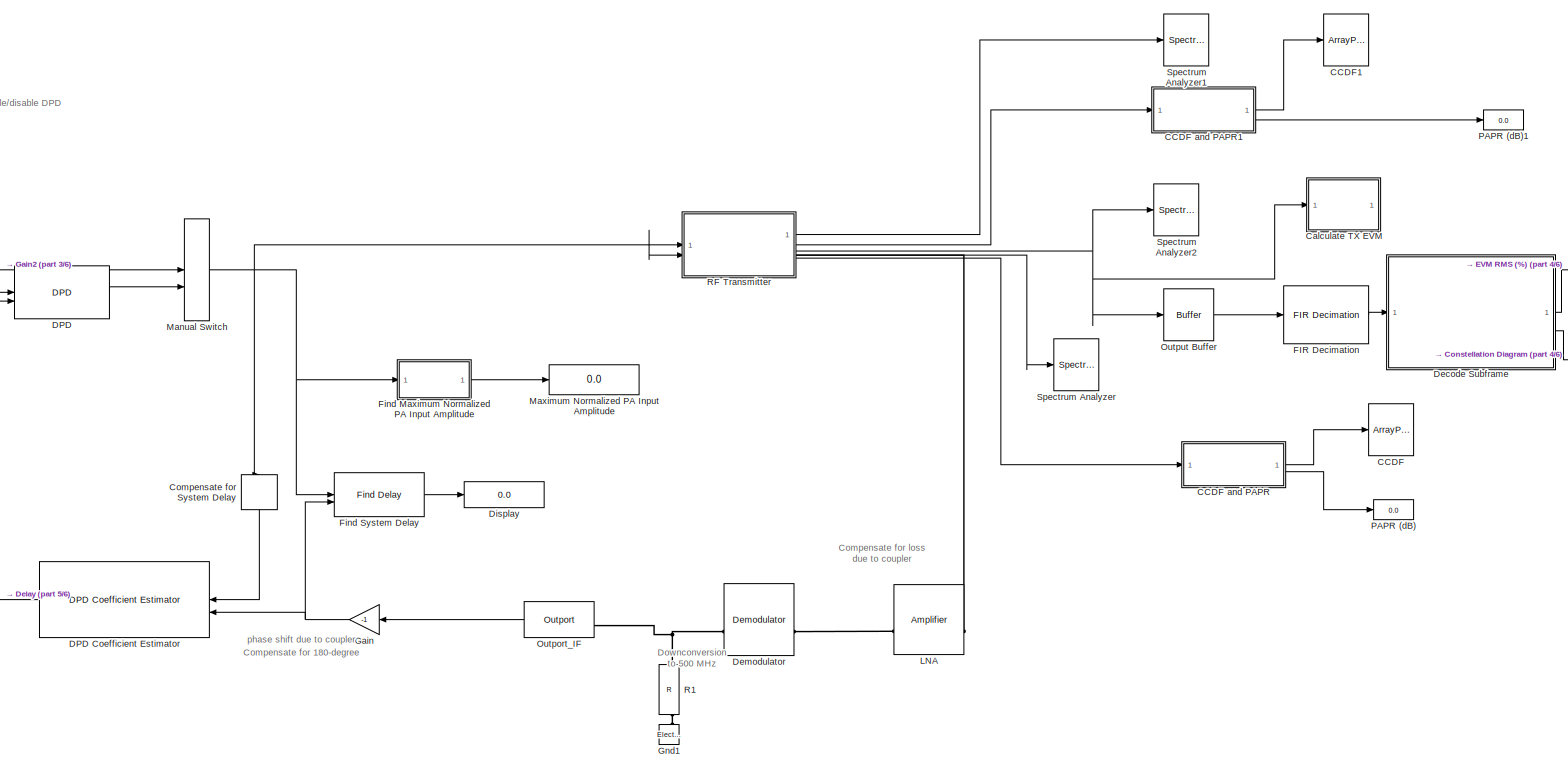
[diagram: root canvas - part 1/6, full width, middle band]
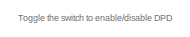
[diagram: root canvas - part 2/6, top left region]
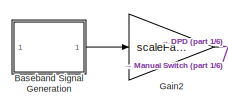
[diagram: root canvas - part 3/6, top left region]
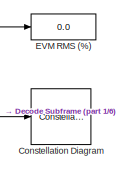
[diagram: root canvas - part 4/6, top right region]
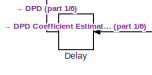
[diagram: root canvas - part 5/6, middle left region]
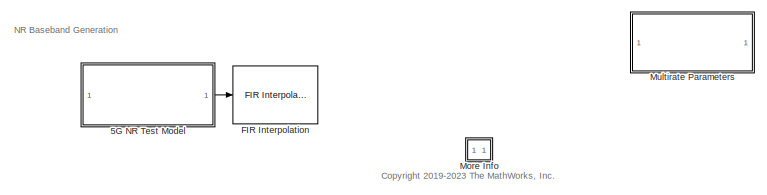
[diagram: root canvas - part 6/6, bottom center region]
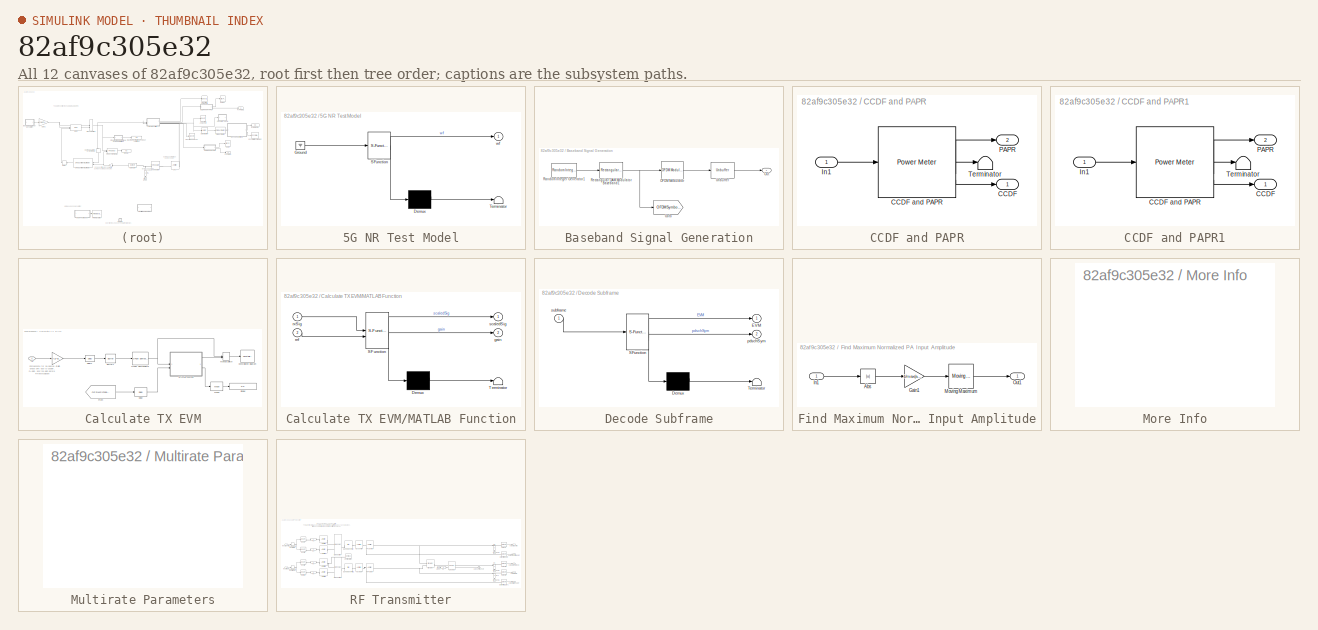
[diagram: thumbnail index - all 12 canvases of the model, root first then tree order]
MODEL slx_82af9c305e32
KIND model
CONFIG AbsTol = auto
CONFIG EnableMultiTasking = off
CONFIG FixedStep = auto
CONFIG InitFcn = % Initialize model parameters\nNRInfo = get_param([gcs '/5G NR Test Model'], 'UserData');\nMultirateBlock = [gcs '/Multirate Parameters'];\nhInitializeNRTMModel(MultirateBlock,NRInfo);
CONFIG MaxStep = auto
CONFIG MinStep = auto
CONFIG PreLoadFcn = % 100 MHz scenario\nscs = 30e3;\nfftLength = 4096;\nNSubcarriers = 3276;\ncpLength = 288; \nwindowLength = 20;\n\nnGuardBandCarrier = fftLength - NSubcarriers;\nofdmSymLen = fftLength+cpLength;\noverSamplingRate = 7;\nfilterLength = 6*70;\n\nBW = scs*fftLength;                       %  Signal BW\nTstep = 1/BW;                   %  Simulation BW BB\nRF = 3.7e9;                       %  RF center frequency\nIF = 5...<+793ch>
CONFIG RelTol = 1e-3
CONFIG SampleTimeConstraint = Unconstrained
CONFIG SolverName = VariableStepAuto
CONFIG StartTime = 0.0
CONFIG StopFcn = clear hDecodeSubframe;\n\n
CONFIG StopTime = Tstep*ofdmSymLen*6
BLOCK [SubSystem] 5G NR Test Model
  Commented = on
  ErrorFcn = Stateflow.Translate.translate
  LibrarySourceBlock = simulink/User-Defined\nFunctions/MATLAB Function
  PermitHierarchicalResolution = ExplicitOnly
  SFBlockType = MATLAB Function
  SystemSampleTime = 1.3020833333333333957e-07
  Tag = BlockGeneratedWWGApp
  TreatAsAtomicUnit = on
  UserDataPersistent = on
BLOCK [Demux] 5G NR Test Model/ Demux 
  Outputs = 1
BLOCK [Ground] 5G NR Test Model/ Ground 
BLOCK [S-Function] 5G NR Test Model/ SFunction 
  EnableBusSupport = on
  FunctionName = sf_sfun
  Parameters = OutputAfterFinalValue,nsamps,waveform
  PortCounts = [1 2]
  SFcnIsStateOwnerBlock = off
  SFunctionDeploymentMode = off
  Tag = Stateflow S-Function 1
BLOCK [Terminator] 5G NR Test Model/ Terminator 
BLOCK [Outport] 5G NR Test Model/wf
BLOCK [SubSystem] Baseband Signal Generation
  NameLocation = top
BLOCK [Goto] Baseband Signal Generation/Goto
  GotoTag = OFDMSymbols
  TagVisibility = global
BLOCK [Reference] Baseband Signal Generation/OFDM Modulator  REF=commofdm/OFDM Modulator
  SourceBlock = commofdm/OFDM Modulator
  SourceType = OFDM Modulator
BLOCK [Outport] Baseband Signal Generation/Out
  VectorParamsAs1DForOutWhenUnconnected = off
BLOCK [Reference] Baseband Signal Generation/Random Integer Generator1  REF=commrandsrc3/Random Integer
Generator
  SourceBlock = commrandsrc3/Random Integer\nGenerator
  SourceType = Random Integer Generator
BLOCK [Reference] Baseband Signal Generation/Rectangular QAM Modulator Baseband1  REF=commdigbbndam3/Rectangular QAM
Modulator
Baseband
  SourceBlock = commdigbbndam3/Rectangular QAM\nModulator\nBaseband
  SourceType = Rectangular QAM Modulator Baseband
BLOCK [Unbuffer] Baseband Signal Generation/Unbuffer
  NameLocation = top
BLOCK [ArrayPlot] CCDF
  Commented = on
  GraphicalSettings = {"Style":{"BackgroundColor":[0.1568627450980392,0.1568627450980392,0.1568627450980392],"AxesColor":[0,0,0],"LabelsColor":[0.6862745098039216,0.6862745098039216,0.6862745098039216],"PreserveColors":false,"Visible":[true],"LineStyle":["-"],"LineColor":[[1,1,0.06666666666666667]],"LineWidth":[1.5],"Marker":["none"],"FontSize":"small"},"Cursors":{"Enabled":false,"XLocation":[2,8],"YLocation":[2,8],"Sn...<+439ch>
  PlotType = Line
  SampleIncrement = 0.1
  ScopeFrameLocation = window
  ShowLegend = on
  Title = CCDF Curve
  WasSavedAsWebScope = on
  WindowPosition = [823.000000,372.000000,866.000000,486.000000,]
  XLabel = Rel Power (dB)
  XOffset = -40.7414
  YLabel = Probability (%)
  YLimits = [-12.4981,112.4829]
  YScale = Log
BLOCK [SubSystem] CCDF and PAPR
  Commented = on
BLOCK [Outport] CCDF and PAPR/CCDF
BLOCK [Reference] CCDF and PAPR/CCDF and PAPR  REF=dspstat3/Power Meter
  SourceBlock = dspstat3/Power Meter
  SourceType = dsp.simulink.PowerMeter
BLOCK [Inport] CCDF and PAPR/In1
BLOCK [Outport] CCDF and PAPR/PAPR
  Port = 2
BLOCK [Terminator] CCDF and PAPR/Terminator
BLOCK [SubSystem] CCDF and PAPR1
  Commented = on
BLOCK [Outport] CCDF and PAPR1/CCDF
BLOCK [Reference] CCDF and PAPR1/CCDF and PAPR  REF=dspstat3/Power Meter
  SourceBlock = dspstat3/Power Meter
  SourceType = dsp.simulink.PowerMeter
BLOCK [Inport] CCDF and PAPR1/In1
BLOCK [Outport] CCDF and PAPR1/PAPR
  Port = 2
BLOCK [Terminator] CCDF and PAPR1/Terminator
BLOCK [ArrayPlot] CCDF1
  Commented = on
  GraphicalSettings = {"Style":{"BackgroundColor":[0.1568627450980392,0.1568627450980392,0.1568627450980392],"AxesColor":[0,0,0],"LabelsColor":[0.6862745098039216,0.6862745098039216,0.6862745098039216],"PreserveColors":false,"Visible":[true],"LineStyle":["-"],"LineColor":[[1,1,0.06666666666666667]],"LineWidth":[1.5],"Marker":["none"],"FontSize":"small"},"Cursors":{"Enabled":false,"XLocation":[2,8],"YLocation":[2,8],"Sn...<+439ch>
  PlotType = Line
  SampleIncrement = 0.1
  ScopeFrameLocation = window
  ShowLegend = on
  Title = CCDF Curve
  WasSavedAsWebScope = on
  WindowPosition = [823.000000,372.000000,866.000000,486.000000,]
  XLabel = Rel Power (dB)
  XOffset = -40.7414
  YLabel = Probability (%)
  YLimits = [-12.498,112.4823]
  YScale = Log
BLOCK [SubSystem] Calculate TX EVM
BLOCK [Buffer] Calculate TX EVM/Buffer1
  N = ofdmSymLen*overSamplingRate
  OutputFrames = off
BLOCK [ConstellationDiagram] Calculate TX EVM/Constellation Diagram
  DefaultConfigurationName = comm.scopes.ConstellationDiagramBlockCfg
  EnableMeasurements = on
  GraphicalSettings = {"GraphicalSettings":{"Style":{}}}
  ReferenceConstellation = {[-7+7i  -7+5i  -7+3i  -7+1i  -7-1i  -7-3i  -7-5i  -7-7i  -5+7i  -5+5i  -5+3i  -5+1i  -5-1i  -5-3i  -5-5i  -5-7i  -3+7i  -3+5i  -3+3i  -3+1i  -3-1i  -3-3i  -3-5i  -3-7i  -1+7i  -1+5i  -1+3i  -1+1i  -1-1i  -1-3i  -1-5i  -1-7i   1+7i   1+5i   1+3i   1+1i   1-1i   1-3i   1-5i   1-7i   3+7i   3+5i   3+3i   3+1i   3-1i   3-3i   3-5i   3-7i   5+7i   5+5i   5+3i   5+1i   5-1i   5-3i   5-5i   5-7i   7+7i ...<+50ch>
  ScopeFrameLocation = window
  Visible = on
  WasSavedAsWebScope = on
  WindowPosition = [501.000000,93.000000,973.000000,546.000000,]
  XLimits = [-9.7559 9.963]
  YLimits = [-9.7559 9.963]
BLOCK [Delay] Calculate TX EVM/Delay
  DelayLength = 2*(fftLength-2*N-1)
  InputPortMap = u0
  InputProcessing = Columns as channels (frame based)
BLOCK [Delay] Calculate TX EVM/Delay1
  DelayLength = ofdmSymLen*overSamplingRate
  InputPortMap = u0
  InputProcessing = Columns as channels (frame based)
BLOCK [Display] Calculate TX EVM/Display
  Decimation = 1
BLOCK [From] Calculate TX EVM/From
  GotoTag = OFDMSymbols
  TagVisibility = global
BLOCK [Gain] Calculate TX EVM/Gain
  Gain = 1/(1j*gain*scaleFactor)
BLOCK [Inport] Calculate TX EVM/In
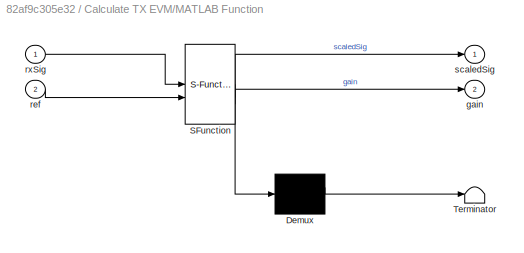
BLOCK [SubSystem] Calculate TX EVM/MATLAB Function
  ErrorFcn = Stateflow.Translate.translate
  PermitHierarchicalResolution = ExplicitOnly
  SFBlockType = MATLAB Function
  TreatAsAtomicUnit = on
BLOCK [Demux] Calculate TX EVM/MATLAB Function/ Demux 
  Outputs = 1
BLOCK [S-Function] Calculate TX EVM/MATLAB Function/ SFunction 
  EnableBusSupport = on
  FunctionName = sf_sfun
  PortCounts = [2 3]
  SFcnIsStateOwnerBlock = off
  SFunctionDeploymentMode = off
  Tag = Stateflow S-Function 2
BLOCK [Terminator] Calculate TX EVM/MATLAB Function/ Terminator 
BLOCK [Outport] Calculate TX EVM/MATLAB Function/gain
  Port = 2
BLOCK [Inport] Calculate TX EVM/MATLAB Function/ref
  Port = 2
BLOCK [Inport] Calculate TX EVM/MATLAB Function/rxSig
BLOCK [Outport] Calculate TX EVM/MATLAB Function/scaledSig
BLOCK [ManualSwitch] Calculate TX EVM/Manual Switch
  CurrentSetting = 0
BLOCK [Reference] Calculate TX EVM/Mean  REF=dspstat3/Mean
  SourceBlock = dspstat3/Mean
  SourceType = Mean
  UserDataPersistent = on
BLOCK [Reference] Calculate TX EVM/OFDM Demodulator  REF=commofdm/OFDM Demodulator
  SourceBlock = commofdm/OFDM Demodulator
  SourceType = OFDM Demodulator
BLOCK [Delay] Compensate for System Delay
  DelayLength = 0
  InputPortMap = u0
  NameLocation = left
BLOCK [ConstellationDiagram] Constellation Diagram
  Commented = on
  DefaultConfigurationName = comm.scopes.ConstellationDiagramBlockCfg
  GraphicalSettings = {"Style":{"BackgroundColor":[0.1568627450980392,0.1568627450980392,0.1568627450980392],"AxesColor":[0,0,0],"LabelsColor":[0.6862745098039216,0.6862745098039216,0.6862745098039216],"LineStyle":["NONE","NONE"],"LineColor":[[1,1,0.06666666666666667],[1,0,0]],"LineWidth":[1,1],"Marker":[".","none"],"IsRefLine":[false,true],"FontSize":"small"},"ReferenceConstellation":[{"ReferenceConstellation":"Custom...<+96ch>
  ScopeFrameLocation = window
  ShowReferenceConstellation = off
  WasSavedAsWebScope = on
  WindowPosition = [576.000000,404.000000,590.000000,412.000000,]
BLOCK [Reference] DPD  REF=commrfcorlib/DPD
  SourceBlock = commrfcorlib/DPD
  SourceType = DPD
BLOCK [Reference] DPD Coefficient Estimator  REF=commrfcorlib/DPD
Coefficient Estimator
  SourceBlock = commrfcorlib/DPD\nCoefficient Estimator
  SourceType = DPD Coefficient Estimator
BLOCK [SubSystem] Decode Subframe
  Commented = on
  ErrorFcn = Stateflow.Translate.translate
  PermitHierarchicalResolution = ExplicitOnly
  SFBlockType = MATLAB Function
  TreatAsAtomicUnit = on
BLOCK [Demux] Decode Subframe/ Demux 
  Outputs = 1
BLOCK [S-Function] Decode Subframe/ SFunction 
  EnableBusSupport = on
  FunctionName = sf_sfun
  Parameters = EVM3GPP
  PortCounts = [1 3]
  SFcnIsStateOwnerBlock = off
  SFunctionDeploymentMode = off
  Tag = Stateflow S-Function 3
BLOCK [Terminator] Decode Subframe/ Terminator 
BLOCK [Outport] Decode Subframe/EVM
BLOCK [Outport] Decode Subframe/pdschSym
  Port = 2
BLOCK [Inport] Decode Subframe/subframe
BLOCK [Delay] Delay
  DelayLength = 1
  InputPortMap = u0
BLOCK [Reference] Demodulator  REF=simrfV2systems/Demodulator
  NameLocation = top
  SourceBlock = simrfV2systems/Demodulator
  SourceType = Demodulator
BLOCK [Display] Display
  Decimation = 1
BLOCK [Display] EVM RMS (%)
  Commented = on
  Decimation = 1
BLOCK [Reference] FIR Decimation  REF=dspmlti4/FIR
Decimation
  SourceBlock = dspmlti4/FIR\nDecimation
  SourceType = FIR Decimation
  UserDataPersistent = on
BLOCK [Reference] FIR Interpolation  REF=dspmlti4/FIR
Interpolation
  SourceBlock = dspmlti4/FIR\nInterpolation
  SourceType = FIR Interpolation
  UserDataPersistent = on
BLOCK [SubSystem] Find Maximum Normalized PA Input Amplitude
  ShowPortLabels = none
BLOCK [Abs] Find Maximum Normalized PA Input Amplitude/Abs
  SaturateOnIntegerOverflow = off
BLOCK [Gain] Find Maximum Normalized PA Input Amplitude/Gain1
  Gain = 1/max(abs(paInput))
BLOCK [Inport] Find Maximum Normalized PA Input Amplitude/In1
BLOCK [Reference] Find Maximum Normalized PA Input Amplitude/Moving Maximum  REF=dspstat3/Moving
Maximum
  SourceBlock = dspstat3/Moving\nMaximum
  SourceType = dsp.simulink.MovingMaximum
BLOCK [Outport] Find Maximum Normalized PA Input Amplitude/Out1
BLOCK [Reference] Find System Delay  REF=commutil2/Find Delay
  SourceBlock = commutil2/Find Delay
  SourceType = Find Delay
BLOCK [Gain] Gain
  Gain = -1
BLOCK [Gain] Gain2
  Gain = scaleFactor
BLOCK [Reference] Gnd1  REF=simrfV2_lib/Elements/Electrical Reference
  NameLocation = right
  SourceBlock = simrfV2_lib/Elements/Electrical Reference
  SourceType = Electrical Reference
BLOCK [Reference] LNA  REF=simrfV2elements/Amplifier
  SourceBlock = simrfV2elements/Amplifier
  SourceType = Amplifier
BLOCK [ManualSwitch] Manual Switch
BLOCK [Display] Maximum Normalized PA Input Amplitude
  Decimation = 1
BLOCK [SubSystem] More Info
  Commented = on
  OpenFcn = showExample('5g/NRModelingAndTestingRFTransmitterExample');
BLOCK [SubSystem] Multirate Parameters
  Commented = on
BLOCK [Reference] Outport_IF  REF=simrfV2util1/Outport
  NameLocation = top
  SourceBlock = simrfV2util1/Outport
  SourceType = Outport
BLOCK [Buffer] Output Buffer
  Commented = on
  N = NRInfo.WaveformLength/NRInfo.WaveformConfig.NumSubframes*OSR
  OutputFrames = off
BLOCK [Display] PAPR (dB)
  Commented = on
BLOCK [Display] PAPR (dB)1
  Commented = on
BLOCK [Reference] R1  REF=simrfV2elements/R
  NameLocation = left
  SourceBlock = simrfV2elements/R
  SourceType = Resistor
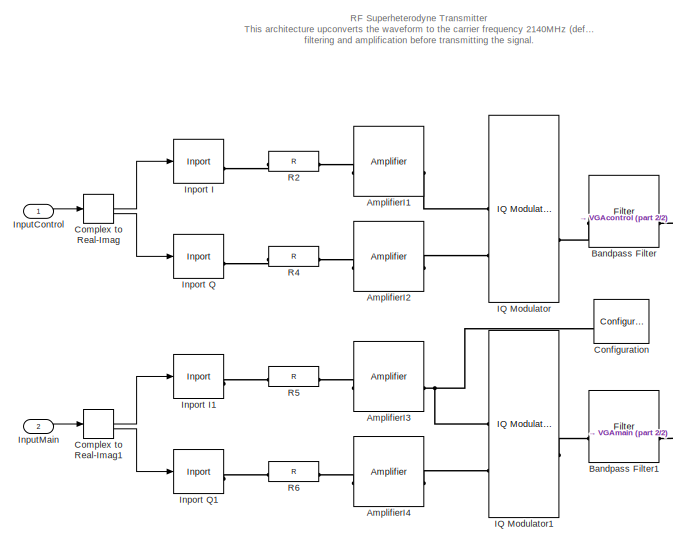
[diagram: RF Transmitter - part 1/2, left side, full height]
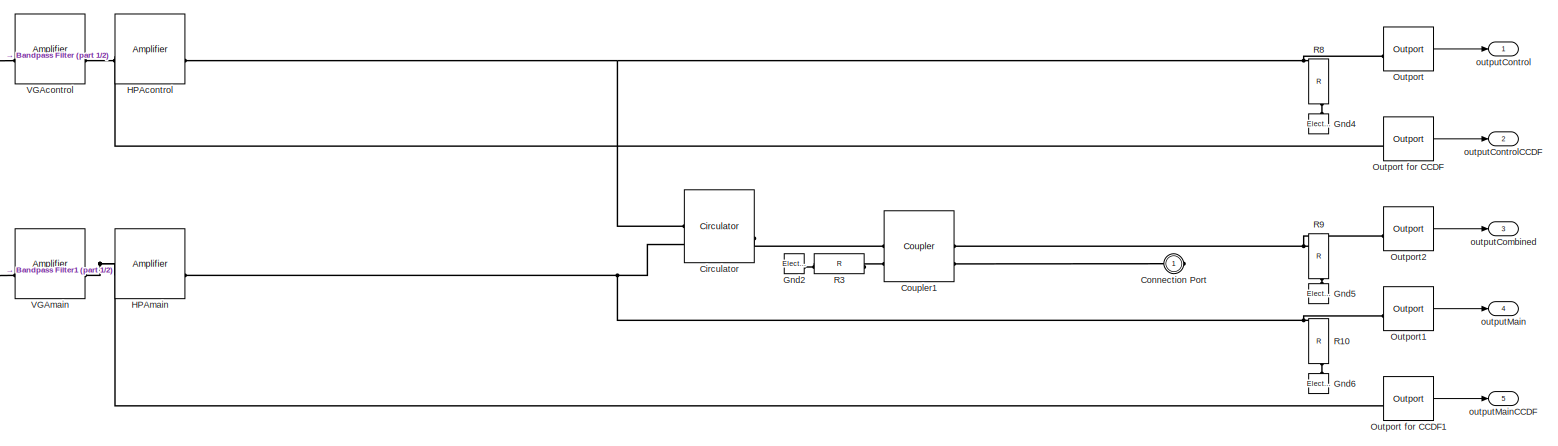
[diagram: RF Transmitter - part 2/2, central region]
BLOCK [SubSystem] RF Transmitter
BLOCK [Reference] RF Transmitter/AmplifierI1  REF=simrfV2elements/Amplifier
  Commented = on
  NameLocation = top
  SourceBlock = simrfV2elements/Amplifier
  SourceType = Amplifier
BLOCK [Reference] RF Transmitter/AmplifierI2  REF=simrfV2elements/Amplifier
  Commented = on
  NameLocation = top
  SourceBlock = simrfV2elements/Amplifier
  SourceType = Amplifier
BLOCK [Reference] RF Transmitter/AmplifierI3  REF=simrfV2elements/Amplifier
  NameLocation = top
  SourceBlock = simrfV2elements/Amplifier
  SourceType = Amplifier
BLOCK [Reference] RF Transmitter/AmplifierI4  REF=simrfV2elements/Amplifier
  NameLocation = top
  SourceBlock = simrfV2elements/Amplifier
  SourceType = Amplifier
BLOCK [Reference] RF Transmitter/Bandpass Filter  REF=simrfV2elements/Filter
  Commented = on
  SourceBlock = simrfV2elements/Filter
  SourceType = Filter
  UserDataPersistent = on
BLOCK [Reference] RF Transmitter/Bandpass Filter1  REF=simrfV2elements/Filter
  SourceBlock = simrfV2elements/Filter
  SourceType = Filter
  UserDataPersistent = on
BLOCK [Reference] RF Transmitter/Circulator  REF=simrfV2junction1/Circulator
  SourceBlock = simrfV2junction1/Circulator
  SourceType = Ideal Circulators
  UserDataPersistent = on
BLOCK [ComplexToRealImag] RF Transmitter/Complex to Real-Imag
  Commented = on
BLOCK [ComplexToRealImag] RF Transmitter/Complex to Real-Imag1
BLOCK [Reference] RF Transmitter/Configuration  REF=simrfV2util1/Configuration
  SourceBlock = simrfV2util1/Configuration
  SourceType = Configuration
BLOCK [PMIOPort] RF Transmitter/Connection Port
  Side = Right
  Tag = simrfV2util1/Connection Port
BLOCK [Reference] RF Transmitter/Coupler1  REF=simrfV2junction1/Coupler
  SourceBlock = simrfV2junction1/Coupler
  SourceType = Ideal Couplers
  UserDataPersistent = on
BLOCK [Reference] RF Transmitter/Gnd2  REF=simrfV2_lib/Elements/Electrical Reference
  SourceBlock = simrfV2_lib/Elements/Electrical Reference
  SourceType = Electrical Reference
BLOCK [Reference] RF Transmitter/Gnd4  REF=simrfV2_lib/Elements/Electrical Reference
  Commented = on
  NameLocation = right
  SourceBlock = simrfV2_lib/Elements/Electrical Reference
  SourceType = Electrical Reference
BLOCK [Reference] RF Transmitter/Gnd5  REF=simrfV2_lib/Elements/Electrical Reference
  NameLocation = right
  SourceBlock = simrfV2_lib/Elements/Electrical Reference
  SourceType = Electrical Reference
BLOCK [Reference] RF Transmitter/Gnd6  REF=simrfV2_lib/Elements/Electrical Reference
  NameLocation = right
  SourceBlock = simrfV2_lib/Elements/Electrical Reference
  SourceType = Electrical Reference
BLOCK [Reference] RF Transmitter/HPAcontrol  REF=simrfV2elements/Amplifier
  Commented = on
  SourceBlock = simrfV2elements/Amplifier
  SourceType = Amplifier
  UserDataPersistent = on
BLOCK [Reference] RF Transmitter/HPAmain  REF=simrfV2elements/Amplifier
  SourceBlock = simrfV2elements/Amplifier
  SourceType = Amplifier
  UserDataPersistent = on
BLOCK [Reference] RF Transmitter/IQ Modulator  REF=simrfV2systems/IQ Modulator
  Commented = on
  SourceBlock = simrfV2systems/IQ Modulator
  SourceType = IQ Modulator
BLOCK [Reference] RF Transmitter/IQ Modulator1  REF=simrfV2systems/IQ Modulator
  SourceBlock = simrfV2systems/IQ Modulator
  SourceType = IQ Modulator
BLOCK [Reference] RF Transmitter/Inport I  REF=simrfV2util1/Inport
  Commented = on
  SourceBlock = simrfV2util1/Inport
  SourceType = Inport
BLOCK [Reference] RF Transmitter/Inport I1  REF=simrfV2util1/Inport
  SourceBlock = simrfV2util1/Inport
  SourceType = Inport
BLOCK [Reference] RF Transmitter/Inport Q  REF=simrfV2util1/Inport
  Commented = on
  SourceBlock = simrfV2util1/Inport
  SourceType = Inport
BLOCK [Reference] RF Transmitter/Inport Q1  REF=simrfV2util1/Inport
  SourceBlock = simrfV2util1/Inport
  SourceType = Inport
BLOCK [Inport] RF Transmitter/InputControl
BLOCK [Inport] RF Transmitter/InputMain
  Port = 2
BLOCK [Reference] RF Transmitter/Outport  REF=simrfV2util1/Outport
  Commented = on
  SourceBlock = simrfV2util1/Outport
  SourceType = Outport
BLOCK [Reference] RF Transmitter/Outport for CCDF  REF=simrfV2util1/Outport
  Commented = on
  SourceBlock = simrfV2util1/Outport
  SourceType = Outport
BLOCK [Reference] RF Transmitter/Outport for CCDF1  REF=simrfV2util1/Outport
  SourceBlock = simrfV2util1/Outport
  SourceType = Outport
BLOCK [Reference] RF Transmitter/Outport1  REF=simrfV2util1/Outport
  SourceBlock = simrfV2util1/Outport
  SourceType = Outport
BLOCK [Reference] RF Transmitter/Outport2  REF=simrfV2util1/Outport
  SourceBlock = simrfV2util1/Outport
  SourceType = Outport
BLOCK [Reference] RF Transmitter/R10  REF=simrfV2elements/R
  NameLocation = left
  SourceBlock = simrfV2elements/R
  SourceType = Resistor
BLOCK [Reference] RF Transmitter/R2  REF=simrfV2elements/R
  Commented = on
  SourceBlock = simrfV2elements/R
  SourceType = Resistor
BLOCK [Reference] RF Transmitter/R3  REF=simrfV2elements/R
  NameLocation = top
  SourceBlock = simrfV2elements/R
  SourceType = Resistor
BLOCK [Reference] RF Transmitter/R4  REF=simrfV2elements/R
  Commented = on
  SourceBlock = simrfV2elements/R
  SourceType = Resistor
BLOCK [Reference] RF Transmitter/R5  REF=simrfV2elements/R
  SourceBlock = simrfV2elements/R
  SourceType = Resistor
BLOCK [Reference] RF Transmitter/R6  REF=simrfV2elements/R
  SourceBlock = simrfV2elements/R
  SourceType = Resistor
BLOCK [Reference] RF Transmitter/R8  REF=simrfV2elements/R
  Commented = on
  NameLocation = left
  SourceBlock = simrfV2elements/R
  SourceType = Resistor
BLOCK [Reference] RF Transmitter/R9  REF=simrfV2elements/R
  NameLocation = left
  SourceBlock = simrfV2elements/R
  SourceType = Resistor
BLOCK [Reference] RF Transmitter/VGAcontrol  REF=simrfV2elements/Amplifier
  Commented = on
  SourceBlock = simrfV2elements/Amplifier
  SourceType = Amplifier
  UserDataPersistent = on
BLOCK [Reference] RF Transmitter/VGAmain  REF=simrfV2elements/Amplifier
  SourceBlock = simrfV2elements/Amplifier
  SourceType = Amplifier
  UserDataPersistent = on
BLOCK [Outport] RF Transmitter/outputCombined
  Port = 3
BLOCK [Outport] RF Transmitter/outputControl
BLOCK [Outport] RF Transmitter/outputControlCCDF
  Port = 2
BLOCK [Outport] RF Transmitter/outputMain
  Port = 4
BLOCK [Outport] RF Transmitter/outputMainCCDF
  Port = 5
BLOCK [SpectrumAnalyzer] Spectrum Analyzer
  Commented = on
  ForgettingFactor = 0.99388
  GraphicalSettings = {"GraphicalSettings":{"Style":{"BackgroundColor":[0.15686274509803921,0.15686274509803921,0.15686274509803921],"AxesColor":[0,0,0],"LabelsColor":[0.68627450980392157,0.68627450980392157,0.68627450980392157],"PreserveColors":false,"Visible":true,"LineStyle":["-"],"LineColor":[1,1,0.066666666666666666],"LineWidth":0.5,"Marker":["none"],"FontSize":"small"},"Cursors":{"Enabled":false,"XLocation":[2,8]...<+779ch>  <repeated x3 — deduplicated; at blocks: Spectrum Analyzer, Spectrum Analyzer1, Spectrum Analyzer2>
  RBW = 30000
  RBWSource = Property
  SampleRate = 30720000
  ScopeFrameLocation = window
  ScopeSpecificationString = spbscopes.SpectrumAnalyzerBlockCfg('CurrentConfiguration', extmgr.ConfigurationSet(extmgr.Configuration('Core','General UI',true),extmgr.Configuration('Core','Source UI',true),extmgr.Configuration('Sources','WiredSimulink',true),extmgr.Configuration('Visuals','Spectrum',true,'AxesProperties',struct('Color',{[0 0 0],[0 0 0]},'XColor',{[0.686274509803922 0.686274509803922 0.686274509803922],[0.68627...<+2684ch>  <repeated x3 — deduplicated; at blocks: Spectrum Analyzer, Spectrum Analyzer1, Spectrum Analyzer2>
  Span = 30720000.000000004
  StartFrequency = -15360000.000000002
  StopFrequency = 15360000.000000002
  VBW = 3000
  VBWSource = Property
  WasSavedAsWebScope = on
  WindowPosition = [487.000000,397.000000,1016.000000,517.000000,]
  YLimits = [-102.46917614,8.54977013]
BLOCK [SpectrumAnalyzer] Spectrum Analyzer1
  Commented = on
  ForgettingFactor = 0.99388
  RBW = 30000
  RBWSource = Property
  SampleRate = 30720000
  ScopeFrameLocation = window
  Span = 30720000.000000004
  StartFrequency = -15360000.000000002
  StopFrequency = 15360000.000000002
  VBW = 3000
  VBWSource = Property
  WasSavedAsWebScope = on
  WindowPosition = [487.000000,397.000000,1016.000000,517.000000,]
  YLimits = [-102.46917614,8.54977013]
BLOCK [SpectrumAnalyzer] Spectrum Analyzer2
  ForgettingFactor = 0.99388
  RBW = 30000
  RBWSource = Property
  SampleRate = 30720000
  ScopeFrameLocation = window
  Span = 30720000.000000004
  StartFrequency = -15360000.000000002
  StopFrequency = 15360000.000000002
  VBW = 3000
  VBWSource = Property
  Visible = on
  WasSavedAsWebScope = on
  WindowPosition = [792.000000,194.000000,1016.000000,517.000000,]
  YLimits = [-102.46917614,8.54977013]
ANNOTATION (root): <copyright redacted>
ANNOTATION (root): Downconversion to 500 MHz
ANNOTATION (root): Compensate for 180-degree phase shift due to coupler
ANNOTATION (root): Compensate for loss due to coupler
ANNOTATION (root): Toggle the switch to enable/disable DPD
ANNOTATION (root): NR Baseband Generation
ANNOTATION Calculate TX EVM: Compensate for 90-degree phase shift due to coupler, PA gain, and the gain before FIR interpolation
ANNOTATION RF Transmitter: RF Superheterodyne Transmitter This architecture upconverts the waveform to the carrier frequency 2140MHz (default) and applies RF filtering and amplification before transmitting the signal.
LINE 5G NR Test Model:1 -> FIR Interpolation:1
LINE Baseband Signal Generation/OFDM Modulator:1 -> Baseband Signal Generation/Unbuffer:1
LINE Baseband Signal Generation/Random Integer Generator1:1 -> Baseband Signal Generation/Rectangular QAM Modulator Baseband1:1
NET Baseband Signal Generation/Rectangular QAM Modulator Baseband1:1 -> Baseband Signal Generation/Goto:1, Baseband Signal Generation/OFDM Modulator:1
LINE Baseband Signal Generation/Unbuffer:1 -> Baseband Signal Generation/Out:1
LINE Baseband Signal Generation:1 -> Gain2:1
LINE CCDF and PAPR/CCDF and PAPR:1 -> CCDF and PAPR/PAPR:1
LINE CCDF and PAPR/CCDF and PAPR:2 -> CCDF and PAPR/Terminator:1
LINE CCDF and PAPR/CCDF and PAPR:3 -> CCDF and PAPR/CCDF:1
LINE CCDF and PAPR/In1:1 -> CCDF and PAPR/CCDF and PAPR:1
LINE CCDF and PAPR1/CCDF and PAPR:1 -> CCDF and PAPR1/PAPR:1
LINE CCDF and PAPR1/CCDF and PAPR:2 -> CCDF and PAPR1/Terminator:1
LINE CCDF and PAPR1/CCDF and PAPR:3 -> CCDF and PAPR1/CCDF:1
LINE CCDF and PAPR1/In1:1 -> CCDF and PAPR1/CCDF and PAPR:1
LINE CCDF and PAPR1:1 -> CCDF1:1
LINE CCDF and PAPR1:2 -> PAPR (dB)1:1
LINE CCDF and PAPR:1 -> CCDF:1
LINE CCDF and PAPR:2 -> PAPR (dB):1
LINE Calculate TX EVM/Buffer1:1 -> Calculate TX EVM/OFDM Demodulator:1
LINE Calculate TX EVM/Delay1:1 -> Calculate TX EVM/Buffer1:1
LINE Calculate TX EVM/Delay:1 -> Calculate TX EVM/MATLAB Function:2
LINE Calculate TX EVM/From:1 -> Calculate TX EVM/Delay:1
LINE Calculate TX EVM/Gain:1 -> Calculate TX EVM/Delay1:1
LINE Calculate TX EVM/In:1 -> Calculate TX EVM/Gain:1
LINE Calculate TX EVM/MATLAB Function:1 -> Calculate TX EVM/Manual Switch:2
LINE Calculate TX EVM/MATLAB Function:2 -> Calculate TX EVM/Mean:1
LINE Calculate TX EVM/Manual Switch:1 -> Calculate TX EVM/Constellation Diagram:1
LINE Calculate TX EVM/Mean:1 -> Calculate TX EVM/Display:1
NET Calculate TX EVM/OFDM Demodulator:1 -> Calculate TX EVM/MATLAB Function:1, Calculate TX EVM/Manual Switch:1
LINE Compensate for System Delay:1 -> DPD Coefficient Estimator:1
LINE DPD Coefficient Estimator:1 -> Delay:1
LINE DPD:1 -> Manual Switch:2
LINE Decode Subframe:1 -> EVM RMS (%):1
LINE Decode Subframe:2 -> Constellation Diagram:1
LINE Delay:1 -> DPD:2
LINE FIR Decimation:1 -> Decode Subframe:1
LINE Find Maximum Normalized PA Input Amplitude/Abs:1 -> Find Maximum Normalized PA Input Amplitude/Gain1:1
LINE Find Maximum Normalized PA Input Amplitude/Gain1:1 -> Find Maximum Normalized PA Input Amplitude/Moving Maximum:1
LINE Find Maximum Normalized PA Input Amplitude/In1:1 -> Find Maximum Normalized PA Input Amplitude/Abs:1
LINE Find Maximum Normalized PA Input Amplitude/Moving Maximum:1 -> Find Maximum Normalized PA Input Amplitude/Out1:1
LINE Find Maximum Normalized PA Input Amplitude:1 -> Maximum Normalized PA Input Amplitude:1
LINE Find System Delay:1 -> Display:1
NET Gain2:1 -> DPD:1, Manual Switch:1
NET Gain:1 -> DPD Coefficient Estimator:2, Find System Delay:2
NET Manual Switch:1 -> Compensate for System Delay:1, Find Maximum Normalized PA Input Amplitude:1, Find System Delay:1, RF Transmitter:1, RF Transmitter:2
LINE Outport_IF:1 -> Gain:1
LINE Output Buffer:1 -> FIR Decimation:1
LINE RF Transmitter/Complex to Real-Imag1:1 -> RF Transmitter/Inport I1:1
LINE RF Transmitter/Complex to Real-Imag1:2 -> RF Transmitter/Inport Q1:1
LINE RF Transmitter/Complex to Real-Imag:1 -> RF Transmitter/Inport I:1
LINE RF Transmitter/Complex to Real-Imag:2 -> RF Transmitter/Inport Q:1
LINE RF Transmitter/InputControl:1 -> RF Transmitter/Complex to Real-Imag:1
LINE RF Transmitter/InputMain:1 -> RF Transmitter/Complex to Real-Imag1:1
LINE RF Transmitter/Outport for CCDF1:1 -> RF Transmitter/outputMainCCDF:1
LINE RF Transmitter/Outport for CCDF:1 -> RF Transmitter/outputControlCCDF:1
LINE RF Transmitter/Outport1:1 -> RF Transmitter/outputMain:1
LINE RF Transmitter/Outport2:1 -> RF Transmitter/outputCombined:1
LINE RF Transmitter/Outport:1 -> RF Transmitter/outputControl:1
LINE RF Transmitter:1 -> Spectrum Analyzer1:1
LINE RF Transmitter:2 -> CCDF and PAPR1:1
NET RF Transmitter:3 -> Calculate TX EVM:1, Output Buffer:1, Spectrum Analyzer2:1
LINE RF Transmitter:4 -> Spectrum Analyzer:1
LINE RF Transmitter:5 -> CCDF and PAPR:1
PLINE Demodulator:LConn1 -- LNA:RConn1
PNET net1: Demodulator:RConn1 -- Outport_IF:LConn1 -- R1:LConn1
PLINE Gnd1:LConn1 -- R1:RConn1
PLINE LNA:LConn1 -- RF Transmitter:RConn1
PLINE RF Transmitter/AmplifierI1:LConn1 -- RF Transmitter/R2:RConn1
PLINE RF Transmitter/AmplifierI1:RConn1 -- RF Transmitter/IQ Modulator:LConn1
PLINE RF Transmitter/AmplifierI2:LConn1 -- RF Transmitter/R4:RConn1
PLINE RF Transmitter/AmplifierI2:RConn1 -- RF Transmitter/IQ Modulator:LConn2
PLINE RF Transmitter/AmplifierI3:LConn1 -- RF Transmitter/R5:RConn1
PNET net2: RF Transmitter/AmplifierI3:RConn1 -- RF Transmitter/Configuration:LConn1 -- RF Transmitter/IQ Modulator1:LConn1
PLINE RF Transmitter/AmplifierI4:LConn1 -- RF Transmitter/R6:RConn1
PLINE RF Transmitter/AmplifierI4:RConn1 -- RF Transmitter/IQ Modulator1:LConn2
PLINE RF Transmitter/Bandpass Filter1:LConn1 -- RF Transmitter/IQ Modulator1:RConn1
PLINE RF Transmitter/Bandpass Filter1:RConn1 -- RF Transmitter/VGAmain:LConn1
PLINE RF Transmitter/Bandpass Filter:LConn1 -- RF Transmitter/IQ Modulator:RConn1
PLINE RF Transmitter/Bandpass Filter:RConn1 -- RF Transmitter/VGAcontrol:LConn1
PNET net3: RF Transmitter/Circulator:LConn1 -- RF Transmitter/HPAcontrol:RConn1 -- RF Transmitter/Outport:LConn1 -- RF Transmitter/R8:LConn1
PNET net4: RF Transmitter/Circulator:LConn2 -- RF Transmitter/HPAmain:RConn1 -- RF Transmitter/Outport1:LConn1 -- RF Transmitter/R10:LConn1
PLINE RF Transmitter/Circulator:RConn1 -- RF Transmitter/Coupler1:LConn1
PLINE RF Transmitter/Connection Port:RConn1 -- RF Transmitter/Coupler1:RConn2
PLINE RF Transmitter/Coupler1:LConn2 -- RF Transmitter/R3:LConn1
PNET net5: RF Transmitter/Coupler1:RConn1 -- RF Transmitter/Outport2:LConn1 -- RF Transmitter/R9:LConn1
PLINE RF Transmitter/Gnd2:LConn1 -- RF Transmitter/R3:RConn1
PLINE RF Transmitter/Gnd4:LConn1 -- RF Transmitter/R8:RConn1
PLINE RF Transmitter/Gnd5:LConn1 -- RF Transmitter/R9:RConn1
PLINE RF Transmitter/Gnd6:LConn1 -- RF Transmitter/R10:RConn1
PNET net6: RF Transmitter/HPAcontrol:LConn1 -- RF Transmitter/Outport for CCDF:LConn1 -- RF Transmitter/VGAcontrol:RConn1
PNET net7: RF Transmitter/HPAmain:LConn1 -- RF Transmitter/Outport for CCDF1:LConn1 -- RF Transmitter/VGAmain:RConn1
PLINE RF Transmitter/Inport I1:RConn1 -- RF Transmitter/R5:LConn1
PLINE RF Transmitter/Inport I:RConn1 -- RF Transmitter/R2:LConn1
PLINE RF Transmitter/Inport Q1:RConn1 -- RF Transmitter/R6:LConn1
PLINE RF Transmitter/Inport Q:RConn1 -- RF Transmitter/R4:LConn1
note: NET lines group one-source signal fan-out (src -> all destinations, sorted); 1:1 wires keep LINE; PNET lines group multi-terminal physical nets as a canonical sorted terminal list (undirected conserving connections); 2-terminal nets keep the pairwise PLINE form
CHART 5G NR Test Model states=1 transitions=1
  STATE_LABEL 'eML_blk_kernel()'
  STATE_LABEL "SCRIPT:\nfunction wf = wfGenerator(waveform, nsamps, OutputAfterFinalValue)\n\n% Create persistent variable\npersistent src;\n\n% Preallocate output\nwf = complex(zeros(nsamps,size(waveform,2)));\n\nif isempty(src)\n    % Get action when signal ends\n    if OutputAfterFinalValue == 1\n        signalEndAction = 'Cyclic repetition';\n    else\n        signalEndAction = 'Set to zero';\n    end\n    \n    % Initialize...<+179ch>"
CHART Calculate TX EVM/MATLAB Function states=1 transitions=1
  STATE_LABEL 'eML_blk_kernel()'
  STATE_LABEL 'SCRIPT:\nfunction [scaledSig, gain] = scaleRotate(rxSig,ref)\npersistent c\npersistent invCov\nif isempty(c)\n    c = complex(ones(size(rxSig)));\nend\nif isempty(invCov)\n    invCov = complex(ones(size(rxSig)));\nend\n\nscaledSig = c.*rxSig;\nerrsig = ref - scaledSig;\n\n% RLS algorithm\nlambda = 0.99;\nXP = conj(rxSig).*invCov;\ninvDen = 1./(lambda + XP.*rxSig);\nK = invDen.*(invCov.*rxSig);\ninvCov = (1/lambda)*(...<+54ch>'
CHART Decode Subframe states=1 transitions=1
  STATE_LABEL 'eML_blk_kernel()'
  STATE_LABEL "SCRIPT:\n%hDecodeSf Subframe decodification and EVM calculation\n%   [EVM,PDSCHSYM] = hDecodeSf(SUBFRAME) calls the function which decodes\n%   the subframe SUBFRAME. It returns the decoded symbols\n%   PDSCHSYM and the average EVM.\n\n%   <copyright redacted>\n\nfunction [EVM,pdschSym] = hDecodeSf(subframe,EVM3GPP)\n\n    coder.extrinsic('hDecodeSubframe');\n\n    % Create count to track n...<+1024ch>"
CHART  states=0 transitions=0
CHART  states=0 transitions=0
CHART  states=0 transitions=0
